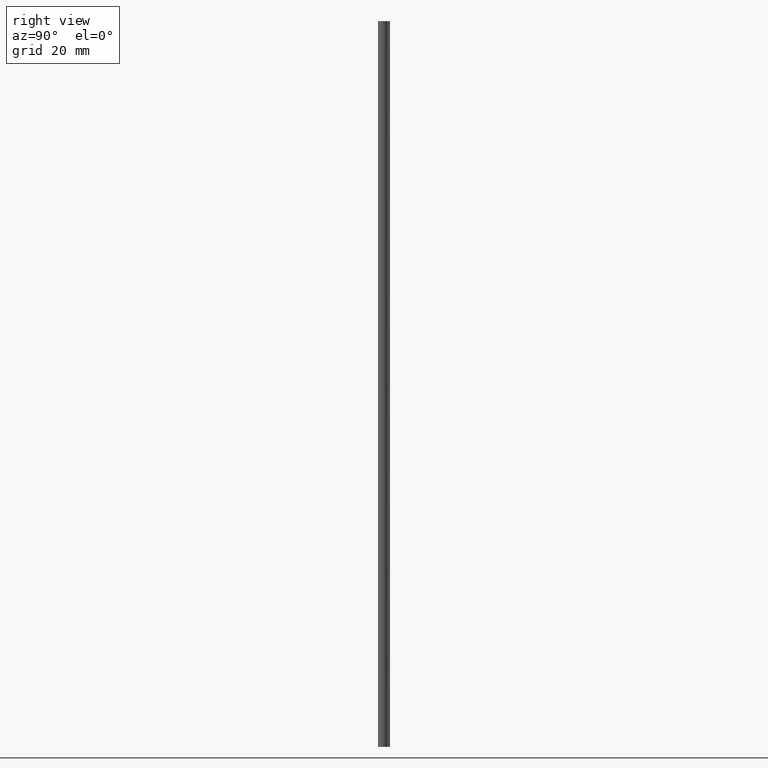
[diagram: clean part render]
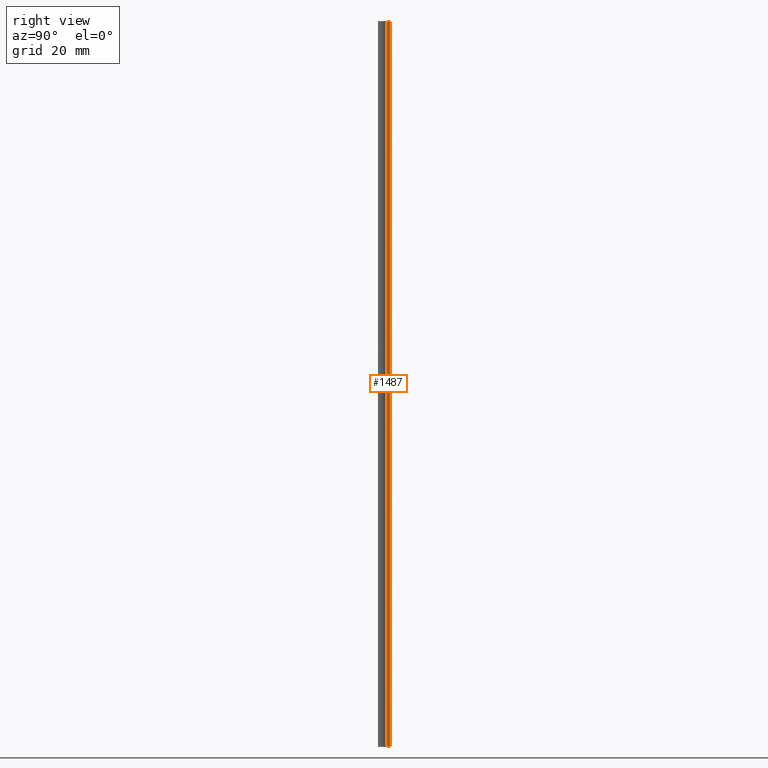
[diagram: same view with one face highlighted and labeled with its STEP entity id]
A machine part, right view. The second image highlights one B-rep face of the part: STEP entity #1487.
In plain terms, the highlighted face is a freeform B-spline surface patch.
Its self-contained STEP definition (entity closure, byte-faithful):
#1410=CARTESIAN_POINT('',(7.500000000000000,0.500000000000000,120.0));
#1411=VERTEX_POINT('',#1410);
#1417=CARTESIAN_POINT('',(7.500000000000000,1.0,120.0));
#1418=VERTEX_POINT('',#1417);
#1419=CARTESIAN_POINT('',(7.500000000000000,0.500000000000000,120.0));
#1420=CARTESIAN_POINT('',(7.500000000000000,1.0,120.0));
#1421=QUASI_UNIFORM_CURVE('',1,(#1419,#1420),.UNSPECIFIED.,.F.,.U.);
#1422=EDGE_CURVE('',#1411,#1418,#1421,.T.);
#1460=CARTESIAN_POINT('',(7.500000000000000,0.475025000969097,-5.993999767416717));
#1461=CARTESIAN_POINT('',(7.500000000000000,0.475025000969097,125.994002986067500));
#1462=CARTESIAN_POINT('',(7.500000000000000,1.024975012441948,-5.993999767416717));
#1463=CARTESIAN_POINT('',(7.500000000000000,1.024975012441948,125.994002986067500));
#1464=B_SPLINE_SURFACE_WITH_KNOTS('',1,1,((#1460,#1462),(#1461,#1463)),.UNSPECIFIED.,.F.,.F.,.U.,(2,2),(2,2),(0.0,131.988002753484300),(0.041708334948495,0.958291687403247),.UNSPECIFIED.);
#1465=CARTESIAN_POINT('',(7.500000000000000,0.500000000000000,0.0));
#1466=VERTEX_POINT('',#1465);
#1467=CARTESIAN_POINT('',(7.500000000000000,1.0,0.0));
#1468=VERTEX_POINT('',#1467);
#1469=CARTESIAN_POINT('',(7.500000000000000,0.500000000000000,0.0));
#1470=CARTESIAN_POINT('',(7.500000000000000,1.0,0.0));
#1471=QUASI_UNIFORM_CURVE('',1,(#1469,#1470),.UNSPECIFIED.,.F.,.U.);
#1472=EDGE_CURVE('',#1466,#1468,#1471,.T.);
#1473=ORIENTED_EDGE('',*,*,#1472,.T.);
#1474=CARTESIAN_POINT('',(7.500000000000000,1.0,120.0));
#1475=CARTESIAN_POINT('',(7.500000000000000,1.0,0.0));
#1476=QUASI_UNIFORM_CURVE('',1,(#1474,#1475),.UNSPECIFIED.,.F.,.U.);
#1477=EDGE_CURVE('',#1418,#1468,#1476,.T.);
#1478=ORIENTED_EDGE('',*,*,#1477,.F.);
#1479=ORIENTED_EDGE('',*,*,#1422,.F.);
#1480=CARTESIAN_POINT('',(7.500000000000000,0.500000000000000,120.0));
#1481=CARTESIAN_POINT('',(7.500000000000000,0.500000000000000,0.0));
#1482=QUASI_UNIFORM_CURVE('',1,(#1480,#1481),.UNSPECIFIED.,.F.,.U.);
#1483=EDGE_CURVE('',#1411,#1466,#1482,.T.);
#1484=ORIENTED_EDGE('',*,*,#1483,.T.);
#1485=EDGE_LOOP('',(#1473,#1478,#1479,#1484));
#1486=FACE_OUTER_BOUND('',#1485,.T.);
#1487=ADVANCED_FACE('',(#1486),#1464,.F.);